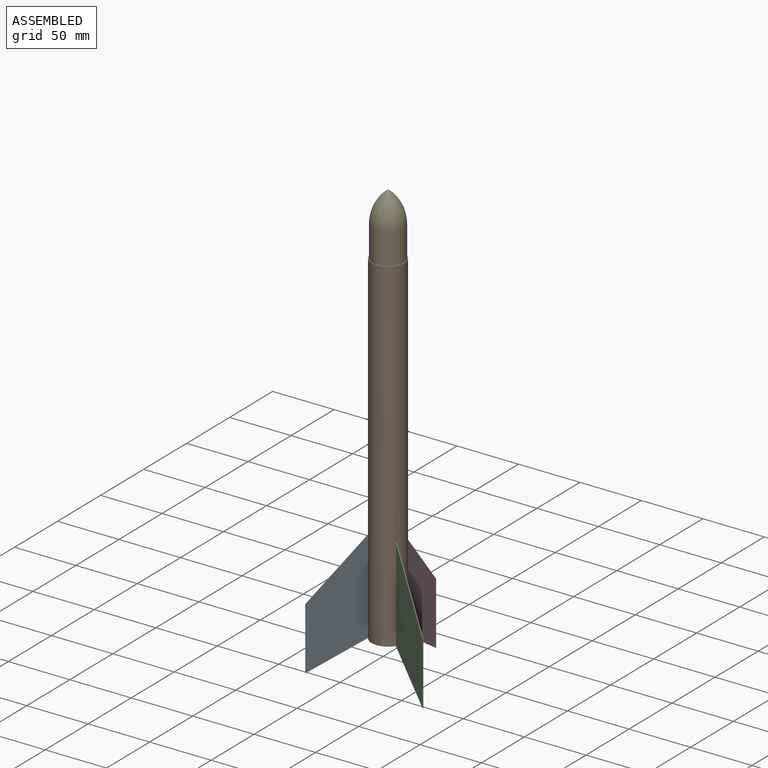
[diagram: assembled view]
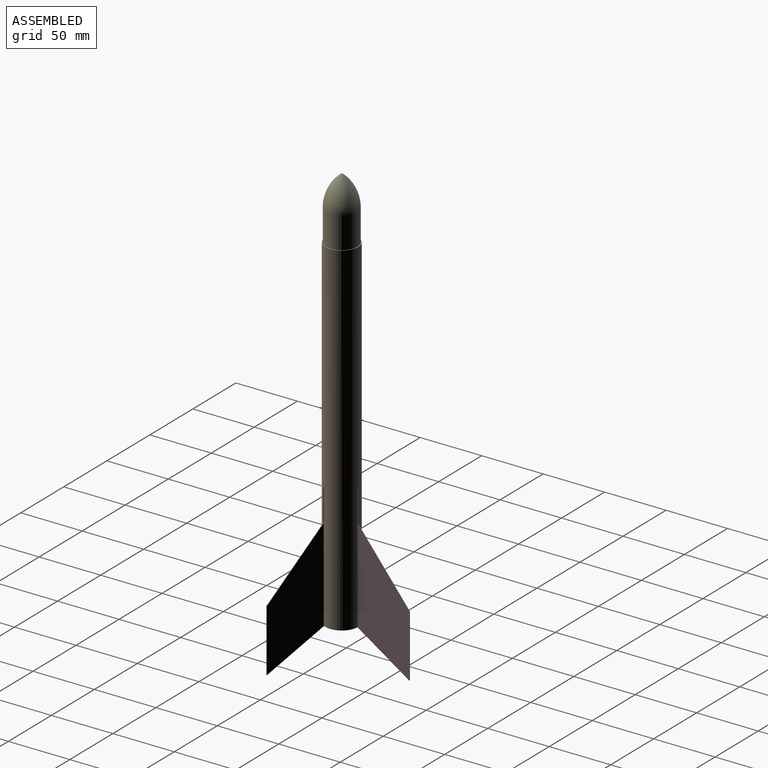
[diagram: assembled view, second angle]
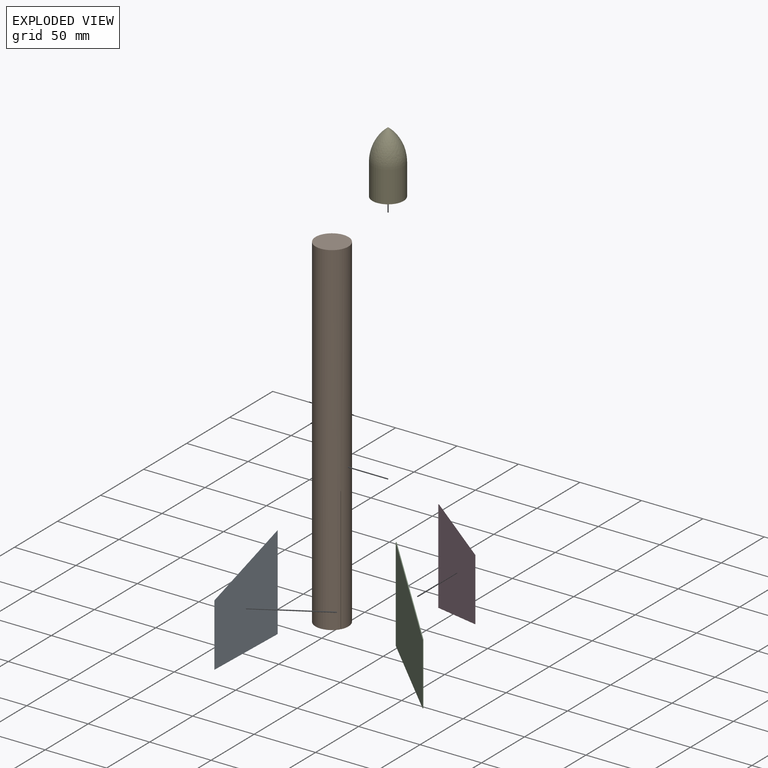
[diagram: exploded view]
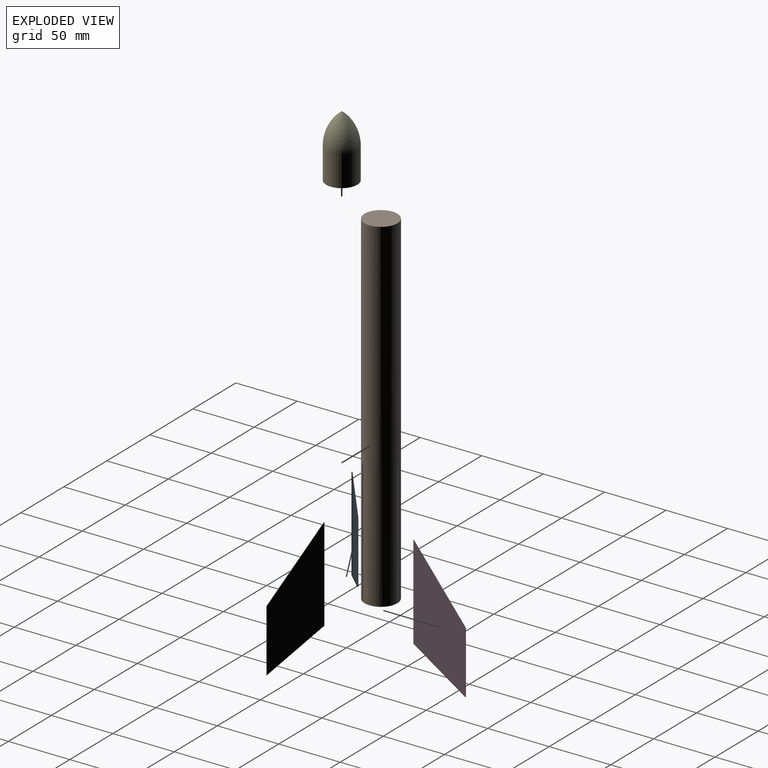
[diagram: exploded view, second angle]
ASSEMBLY  parts=5 mates=4
PART A: 6 faces, bbox 42.3x0.6x104.3 mm
  f0: plane 53.52x42.31mm, normal (0.78,0,0.62), area 43.3mm2, adj f1,f3,f4,f5
  f1: plane 76.2x0.64mm, normal (-1,0,0), area 48.4mm2, adj f0,f2,f4,f5
  f2: plane 42.31x28.12mm, normal (-0.55,0,-0.83), area 32.3mm2, adj f1,f3,f4,f5
  f3: plane 50.8x0.64mm, normal (1,0,0), area 32.3mm2, adj f0,f2,f4,f5
  f4: plane 104.32x42.31mm, normal (0,-1,0), area 2686.7mm2, adj f0,f1,f2,f3
  f5: plane 104.32x42.31mm, normal (0,1,0), area 2686.7mm2, adj f0,f1,f2,f3
PART B: 15 faces, bbox 26.7x26.7x279.4 mm
  f0: cylinder r=13.33mm len=279.4mm, axis (0,0,-1), area 23195.2mm2, adj f1,f2,f3,f4,f5,f7,f8,f9
  f1: plane 26.67x26.67mm, normal (0,0,1), area 558.6mm2, adj f0
  f2: plane 26.67x26.67mm, normal (0,0,-1), area 558mm2, adj f0,f4,f5,f6,f8,f9,f10,f12
  f3: plane 0.85x0.64mm, normal (0,0,-1), area 0.2mm2, adj f0,f4,f5,f6
  f4: plane 101.6x0.22mm, normal (-0.48,0.88,0), area 25.6mm2, adj f0,f2,f3,f6
  f5: plane 101.6x0.23mm, normal (0.48,-0.88,0), area 26.3mm2, adj f0,f2,f3,f6
  f6: plane 101.6x0.73mm, normal (-0.87,-0.49,0), area 85.6mm2, adj f2,f3,f4,f5
  f7: plane 0.64x0.34mm, normal (0,0,-1), area 0.2mm2, adj f0,f8,f9,f10
  f8: plane 101.6x0.33mm, normal (-1,0,0), area 33.8mm2, adj f0,f2,f7,f10
  f9: plane 101.6x0.34mm, normal (1,0,0), area 34.5mm2, adj f0,f2,f7,f10
  f10: plane 101.6x0.64mm, normal (0,1,0), area 64.5mm2, adj f2,f7,f8,f9
  f11: plane 0.75x0.66mm, normal (0,0,-1), area 0.3mm2, adj f0,f12,f13,f14
  f12: plane 101.6x0.35mm, normal (0.5,0.87,0), area 40.5mm2, adj f0,f2,f11,f14
  f13: plane 101.6x0.35mm, normal (-0.5,-0.87,0), area 40.7mm2, adj f0,f2,f11,f14
  f14: plane 101.6x0.55mm, normal (0.87,-0.5,0), area 64.5mm2, adj f2,f11,f12,f13
PART C: same geometry as A
PART D: same geometry as A
PART E: 3 faces, bbox 25.4x25.4x25.4 mm
  f0: plane 25.4x25.4mm, normal (0,0,-1), area 506.7mm2, adj f1
  f1: cylinder r=12.7mm len=25.4mm, axis (0,0,1), area 2026.8mm2, adj f0,f2
  f2: revolved ~25.4x12.7mm, area 0mm2, adj f1
PLACE A rot(axis=(0,0,-1),150.4deg) t=(-102.43,-1.95,-30.9)mm
PLACE B t=(-72.1,15.79,-53.58)mm fixed
PLACE C rot(axis=(0,0,-1),30deg) t=(-41.65,-1.47,-30.9)mm
PLACE D rot(axis=(0,0,1),90deg) t=(-72.28,50.84,-30.9)mm
PLACE E t=(-72.1,15.79,225.82)mm
MATE fastened C.f1 <-> B.f14  axis (-0.87,0.5,0) through (-60.92,9.29,-15.48)mm
MATE fastened A.f1 <-> B.f6  axis (0.87,0.49,0) through (-83.41,9.22,-15.48)mm
MATE fastened D.f1 <-> B.f10  axis (0,-1,0) through (-71.96,28.78,-15.48)mm
MATE fastened E.f1 <-> B.f0  axis (0,0,-1) through (-72.1,15.79,225.82)mm
